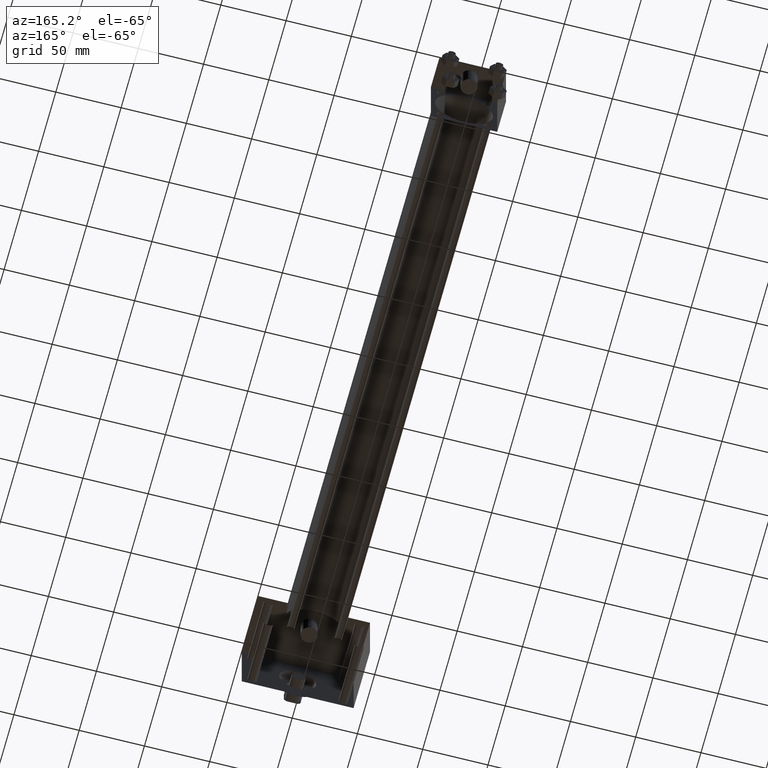
[diagram: clean part render]
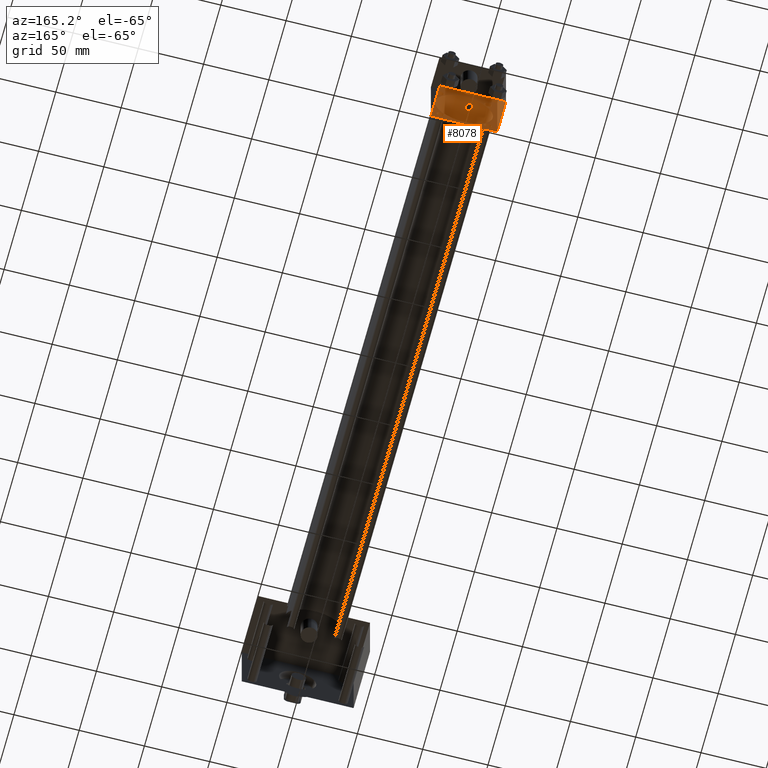
[diagram: same view with one face highlighted and labeled with its STEP entity id]
A machine part, auxiliary view. The second image highlights one B-rep face of the part: STEP entity #8078.
In plain terms, the highlighted planar face has unit normal (0, 0, -1).
Its self-contained STEP definition (entity closure, byte-faithful):
#2206=EDGE_CURVE('',#2211,#2212,#2207,.T.);
#2207=LINE('',#2208,#2209);
#2208=CARTESIAN_POINT('',(-2.540000000E+001,5.238750000E+002,-2.540000000E+001));
#2209=VECTOR('',#2210,1.0E+000);
#2210=DIRECTION('',(1.0E+000,0.0E+000,0.0E+000));
#2211=VERTEX_POINT('',#2213);
#2212=VERTEX_POINT('',#2214);
#2213=CARTESIAN_POINT('',(-2.540000000E+001,5.238750000E+002,-2.540000000E+001));
#2214=CARTESIAN_POINT('',(2.540000000E+001,5.238750000E+002,-2.540000000E+001));
#2379=EDGE_CURVE('',#2384,#2385,#2380,.T.);
#2380=LINE('',#2381,#2382);
#2381=CARTESIAN_POINT('',(-2.540000000E+001,4.984750000E+002,-2.540000000E+001));
#2382=VECTOR('',#2383,1.0E+000);
#2383=DIRECTION('',(1.0E+000,0.0E+000,0.0E+000));
#2384=VERTEX_POINT('',#2386);
#2385=VERTEX_POINT('',#2387);
#2386=CARTESIAN_POINT('',(-2.540000000E+001,4.984750000E+002,-2.540000000E+001));
#2387=CARTESIAN_POINT('',(2.540000000E+001,4.984750000E+002,-2.540000000E+001));
#2421=FACE_OUTER_BOUND('',#2423,.T.);
#2422=FACE_BOUND('',#2424,.T.);
#2423=EDGE_LOOP('',(#2425,#2426,#2427,#2428));
#2424=EDGE_LOOP('',(#2439));
#2425=ORIENTED_EDGE('',*,*,#2379,.F.);
#2426=ORIENTED_EDGE('',*,*,#2429,.F.);
#2427=ORIENTED_EDGE('',*,*,#2206,.T.);
#2428=ORIENTED_EDGE('',*,*,#2434,.T.);
#2429=EDGE_CURVE('',#2211,#2384,#2430,.T.);
#2430=LINE('',#2431,#2432);
#2431=CARTESIAN_POINT('',(-2.540000000E+001,5.238750000E+002,-2.540000000E+001));
#2432=VECTOR('',#2433,1.0E+000);
#2433=DIRECTION('',(0.0E+000,-1.0E+000,0.0E+000));
#2434=EDGE_CURVE('',#2212,#2385,#2435,.T.);
#2435=LINE('',#2436,#2437);
#2436=CARTESIAN_POINT('',(2.540000000E+001,5.238750000E+002,-2.540000000E+001));
#2437=VECTOR('',#2438,1.0E+000);
#2438=DIRECTION('',(0.0E+000,-1.0E+000,0.0E+000));
#2439=ORIENTED_EDGE('',*,*,#2440,.T.);
#2440=EDGE_CURVE('',#2446,#2446,#2441,.T.);
#2441=CIRCLE('',#2442,2.778125000E+000);
#2442=AXIS2_PLACEMENT_3D('',#2443,#2444,#2445);
#2443=CARTESIAN_POINT('',(0.000000000E+000,5.127625000E+002,-2.540000000E+001));
#2444=DIRECTION('',(0.0E+000,0.0E+000,1.0E+000));
#2445=DIRECTION('',(1.0E+000,0.0E+000,0.0E+000));
#2446=VERTEX_POINT('',#2447);
#2447=CARTESIAN_POINT('',(2.778125000E+000,5.127625000E+002,-2.540000000E+001));
#2448=PLANE('',#2449);
#2449=AXIS2_PLACEMENT_3D('',#2450,#2451,#2452);
#2450=CARTESIAN_POINT('',(-2.540000000E+001,5.238750000E+002,-2.540000000E+001));
#2451=DIRECTION('',(0.0E+000,0.0E+000,-1.0E+000));
#2452=DIRECTION('',(-1.0E+000,0.0E+000,0.0E+000));
#8078=ADVANCED_FACE('',(#2421,#2422),#2448,.T.);